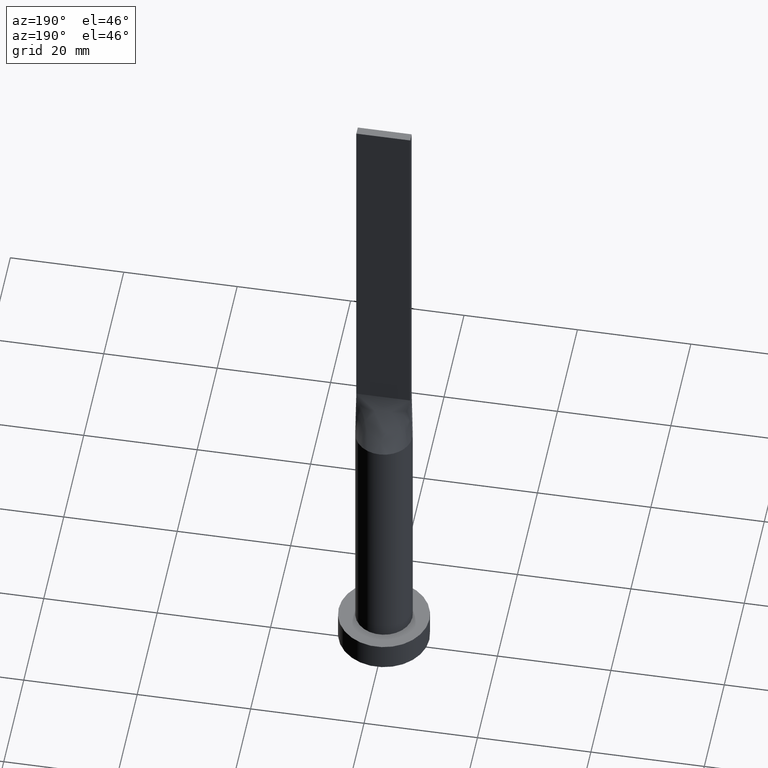
[diagram: clean part render]
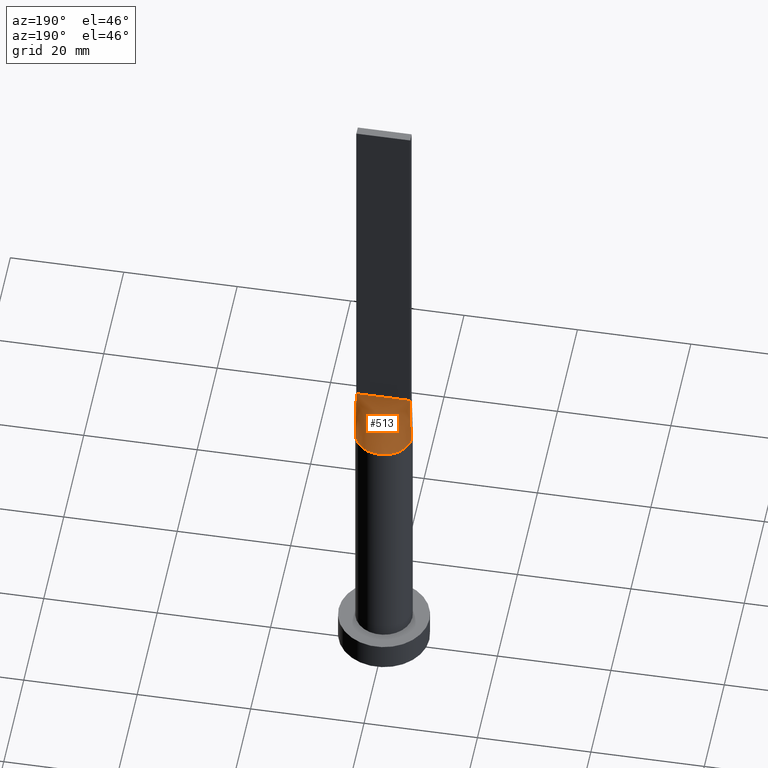
[diagram: same view with one face highlighted and labeled with its STEP entity id]
A machine part, auxiliary view. The second image highlights one B-rep face of the part: STEP entity #513.
In plain terms, the highlighted face is a freeform B-spline surface patch.
Its self-contained STEP definition (entity closure, byte-faithful):
#3 = CARTESIAN_POINT ( 'NONE',  ( 0.9895833333333176052, 0.7500000000000002220, 59.99999999999998579 ) ) ;
#8 = CARTESIAN_POINT ( 'NONE',  ( -2.353781608410062010, 4.424438117685770777, 49.99999999999998579 ) ) ;
#10 = CARTESIAN_POINT ( 'NONE',  ( -4.354166666666669627, 0.7500000000000002220, 60.00000000000000000 ) ) ;
#11 = CARTESIAN_POINT ( 'NONE',  ( -4.753727492665067444, 1.629988260829202007, 50.00000000000000711 ) ) ;
#14 = LINE ( 'NONE', #259, #219 ) ;
#17 = CARTESIAN_POINT ( 'NONE',  ( -0.7119876437238006339, 4.961551549233178982, 49.99999999999999289 ) ) ;
#24 = CARTESIAN_POINT ( 'NONE',  ( -4.332026455536841070, 2.547220758687717801, 49.99999999999999289 ) ) ;
#45 = B_SPLINE_CURVE_WITH_KNOTS ( 'NONE', 3,
 ( #293, #217, #206, #218, #307, #65, #261, #482, #158, #524, #233, #409, #319, #447, #17, #403, #322, #594, #275, #270, #597, #547, #24, #168, #538, #362 ),
 .UNSPECIFIED., .F., .F.,
 ( 4, 2, 2, 2, 2, 2, 2, 2, 2, 2, 2, 2, 4 ),
 ( 0.000000000000000000, 0.1250000000000001388, 0.2500000000000002220, 0.3125000000000002776, 0.3750000000000002776, 0.4375000000000002776, 0.5000000000000002220, 0.5625000000000002220, 0.6250000000000001110, 0.6875000000000001110, 0.7500000000000001110, 0.8750000000000001110, 1.000000000000000000 ),
 .UNSPECIFIED. ) ;
#54 = CARTESIAN_POINT ( 'NONE',  ( 0.3958333333333181603, 0.7500000000000002220, 59.99999999999998579 ) ) ;
#57 = CARTESIAN_POINT ( 'NONE',  ( 2.643217737595826566, 4.256483892511437439, 49.99999999999999289 ) ) ;
#60 = CARTESIAN_POINT ( 'NONE',  ( -4.874625637456156291, 1.186344398896586716, 49.99999999999998579 ) ) ;
#61 = VERTEX_POINT ( 'NONE', #184 ) ;
#65 = CARTESIAN_POINT ( 'NONE',  ( 3.404830936252119411, 3.673931880027066388, 50.00000000000000000 ) ) ;
#90 = VERTEX_POINT ( 'NONE', #338 ) ;
#101 = CARTESIAN_POINT ( 'NONE',  ( -1.400150253878312823, 4.812847332616943419, 49.99999999999999289 ) ) ;
#106 = CARTESIAN_POINT ( 'NONE',  ( -2.770833333333342807, 0.7500000000000002220, 60.00000000000000000 ) ) ;
#109 = CARTESIAN_POINT ( 'NONE',  ( 0.7916666666666508645, 0.7500000000000002220, 59.99999999999998579 ) ) ;
#121 = ORIENTED_EDGE ( 'NONE', *, *, #137, .F. ) ;
#122 = CARTESIAN_POINT ( 'NONE',  ( 4.750000000000000000, 0.7500000000000002220, 60.00000000000000000 ) ) ;
#137 = EDGE_CURVE ( 'NONE', #325, #90, #309, .T. ) ;
#144 = CARTESIAN_POINT ( 'NONE',  ( 3.166666666666658081, 0.7500000000000002220, 60.00000000000000000 ) ) ;
#149 = FACE_OUTER_BOUND ( 'NONE', #498, .T. ) ;
#158 = CARTESIAN_POINT ( 'NONE',  ( 2.353781608410062454, 4.424438117685770777, 49.99999999999999289 ) ) ;
#160 = DIRECTION ( 'NONE',  ( 0.01887803397728732291, -0.002980742206940072483, 0.9998173508241633423 ) ) ;
#165 = CARTESIAN_POINT ( 'NONE',  ( 0.7119876437238013001, 4.961551549233180758, 49.99999999999999289 ) ) ;
#168 = CARTESIAN_POINT ( 'NONE',  ( -4.753727492665067444, 1.629988260829202007, 50.00000000000000711 ) ) ;
#184 = CARTESIAN_POINT ( 'NONE',  ( -4.938831943662458812, 0.7798155886440080176, 49.99999999999999289 ) ) ;
#185 = VERTEX_POINT ( 'NONE', #467 ) ;
#188 = ORIENTED_EDGE ( 'NONE', *, *, #553, .T. ) ;
#194 = CARTESIAN_POINT ( 'NONE',  ( 3.958333333333328596, 0.7500000000000002220, 60.00000000000000000 ) ) ;
#198 = CARTESIAN_POINT ( 'NONE',  ( 2.177083333333320159, 0.7500000000000002220, 59.99999999999998579 ) ) ;
#206 = CARTESIAN_POINT ( 'NONE',  ( 4.753727492665065668, 1.629988260829201563, 49.99999999999998579 ) ) ;
#209 = CARTESIAN_POINT ( 'NONE',  ( -0.9895833333333476922, 0.7500000000000002220, 60.00000000000000000 ) ) ;
#211 = CARTESIAN_POINT ( 'NONE',  ( -4.750000000000000000, 0.7500000000000002220, 60.00000000000000000 ) ) ;
#217 = CARTESIAN_POINT ( 'NONE',  ( 4.874625637456157179, 1.186344398896585606, 49.99999999999999289 ) ) ;
#218 = CARTESIAN_POINT ( 'NONE',  ( 4.332026455536839293, 2.547220758687718689, 49.99999999999998579 ) ) ;
#219 = VECTOR ( 'NONE', #160, 1000.000000000000114 ) ;
#233 = CARTESIAN_POINT ( 'NONE',  ( 1.400150253878312823, 4.812847332616943419, 49.99999999999999289 ) ) ;
#247 = CARTESIAN_POINT ( 'NONE',  ( 4.354166666666664298, 0.7500000000000002220, 60.00000000000000000 ) ) ;
#251 = CARTESIAN_POINT ( 'NONE',  ( -1.385416666666680285, 0.7500000000000002220, 60.00000000000000000 ) ) ;
#254 = CARTESIAN_POINT ( 'NONE',  ( 1.583333333333318604, 0.7500000000000002220, 59.99999999999998579 ) ) ;
#255 = VECTOR ( 'NONE', #333, 1000.000000000000114 ) ;
#257 = CARTESIAN_POINT ( 'NONE',  ( -3.166666666666675400, 0.7500000000000002220, 60.00000000000000000 ) ) ;
#259 = CARTESIAN_POINT ( 'NONE',  ( -4.844407413322673328, 0.7649064336825274202, 54.99999999999999289 ) ) ;
#260 = VECTOR ( 'NONE', #411, 1000.000000000000000 ) ;
#261 = CARTESIAN_POINT ( 'NONE',  ( 3.168723755431093192, 3.881165404529570040, 49.99999999999999289 ) ) ;
#267 = B_SPLINE_SURFACE_WITH_KNOTS ( 'NONE', 3, 1, ( 
 ( #424, #287 ),
 ( #430, #247 ),
 ( #616, #194 ),
 ( #385, #144 ),
 ( #337, #426 ),
 ( #618, #198 ),
 ( #386, #571 ),
 ( #57, #254 ),
 ( #297, #399 ),
 ( #483, #3 ),
 ( #582, #109 ),
 ( #165, #54 ),
 ( #395, #304 ),
 ( #345, #393 ),
 ( #591, #528 ),
 ( #101, #348 ),
 ( #436, #209 ),
 ( #8, #251 ),
 ( #301, #578 ),
 ( #439, #486 ),
 ( #440, #492 ),
 ( #585, #106 ),
 ( #358, #257 ),
 ( #11, #355 ),
 ( #60, #10 ),
 ( #533, #211 ) ),
 .UNSPECIFIED., .F., .F., .F.,
 ( 4, 2, 2, 2, 2, 2, 2, 2, 2, 2, 2, 2, 4 ),
 ( 2, 2 ),
 ( 0.000000000000000000, 0.1250000000000001388, 0.2500000000000002220, 0.3125000000000002776, 0.3750000000000002776, 0.4375000000000002776, 0.5000000000000002220, 0.5625000000000002220, 0.6250000000000001110, 0.6875000000000001110, 0.7500000000000001110, 0.8750000000000001110, 1.000000000000000000 ),
 ( 0.000000000000000000, 1.000000000000000000 ),
 .UNSPECIFIED. ) ;
#270 = CARTESIAN_POINT ( 'NONE',  ( -3.168723755431092748, 3.881165404529570484, 49.99999999999997868 ) ) ;
#275 = CARTESIAN_POINT ( 'NONE',  ( -2.643217737595827455, 4.256483892511438327, 49.99999999999998579 ) ) ;
#287 = CARTESIAN_POINT ( 'NONE',  ( 4.750000000000000000, 0.7500000000000002220, 60.00000000000000000 ) ) ;
#291 = CARTESIAN_POINT ( 'NONE',  ( 4.844407413322673328, 0.7649064336825270871, 54.99999999999999289 ) ) ;
#293 = CARTESIAN_POINT ( 'NONE',  ( 4.938814826645345768, 0.7798128673650538412, 49.99999999999999289 ) ) ;
#297 = CARTESIAN_POINT ( 'NONE',  ( 2.353781608410062454, 4.424438117685770777, 49.99999999999999289 ) ) ;
#301 = CARTESIAN_POINT ( 'NONE',  ( -2.643217737595827455, 4.256483892511438327, 49.99999999999998579 ) ) ;
#304 = CARTESIAN_POINT ( 'NONE',  ( 0.1979166666666522800, 0.7500000000000001110, 59.99999999999997868 ) ) ;
#307 = CARTESIAN_POINT ( 'NONE',  ( 4.029217956433126524, 3.021257902548482477, 50.00000000000000000 ) ) ;
#309 = LINE ( 'NONE', #310, #260 ) ;
#310 = CARTESIAN_POINT ( 'NONE',  ( -4.750000000000000000, 0.7500000000000002220, 60.00000000000000000 ) ) ;
#319 = CARTESIAN_POINT ( 'NONE',  ( 0.3560391241594590972, 5.000000000000001776, 50.00000000000000000 ) ) ;
#322 = CARTESIAN_POINT ( 'NONE',  ( -1.732223102076449806, 4.702695359254402518, 49.99999999999998579 ) ) ;
#325 = VERTEX_POINT ( 'NONE', #122 ) ;
#333 = DIRECTION ( 'NONE',  ( -0.01887803397728732291, -0.002980742206940007865, 0.9998173508241633423 ) ) ;
#334 = ORIENTED_EDGE ( 'NONE', *, *, #452, .F. ) ;
#337 = CARTESIAN_POINT ( 'NONE',  ( 4.029217956433126524, 3.021257902548482477, 50.00000000000000000 ) ) ;
#338 = CARTESIAN_POINT ( 'NONE',  ( -4.750000000000000000, 0.7500000000000002220, 60.00000000000000000 ) ) ;
#340 = ORIENTED_EDGE ( 'NONE', *, *, #577, .T. ) ;
#345 = CARTESIAN_POINT ( 'NONE',  ( -0.3560391241594593192, 5.000000000000000000, 50.00000000000000711 ) ) ;
#348 = CARTESIAN_POINT ( 'NONE',  ( -0.7916666666666816177, 0.7500000000000002220, 59.99999999999999289 ) ) ;
#355 = CARTESIAN_POINT ( 'NONE',  ( -3.958333333333337922, 0.7500000000000002220, 60.00000000000000000 ) ) ;
#358 = CARTESIAN_POINT ( 'NONE',  ( -4.332026455536841070, 2.547220758687717801, 49.99999999999999289 ) ) ;
#362 = CARTESIAN_POINT ( 'NONE',  ( -4.938831943662458812, 0.7798155886440080176, 49.99999999999999289 ) ) ;
#385 = CARTESIAN_POINT ( 'NONE',  ( 4.332026455536839293, 2.547220758687718689, 49.99999999999998579 ) ) ;
#386 = CARTESIAN_POINT ( 'NONE',  ( 3.168723755431093192, 3.881165404529570040, 49.99999999999999289 ) ) ;
#393 = CARTESIAN_POINT ( 'NONE',  ( -0.1979166666666808405, 0.7500000000000002220, 59.99999999999997868 ) ) ;
#395 = CARTESIAN_POINT ( 'NONE',  ( 0.3560391241594590972, 5.000000000000001776, 50.00000000000000000 ) ) ;
#399 = CARTESIAN_POINT ( 'NONE',  ( 1.385416666666651642, 0.7500000000000002220, 59.99999999999998579 ) ) ;
#403 = CARTESIAN_POINT ( 'NONE',  ( -1.400150253878312823, 4.812847332616943419, 49.99999999999999289 ) ) ;
#409 = CARTESIAN_POINT ( 'NONE',  ( 0.7119876437238013001, 4.961551549233180758, 49.99999999999999289 ) ) ;
#411 = DIRECTION ( 'NONE',  ( -1.000000000000000000, -0.000000000000000000, -0.000000000000000000 ) ) ;
#422 = LINE ( 'NONE', #291, #255 ) ;
#424 = CARTESIAN_POINT ( 'NONE',  ( 4.938814826645345768, 0.7798128673650542853, 49.99999999999999289 ) ) ;
#426 = CARTESIAN_POINT ( 'NONE',  ( 2.770833333333322823, 0.7500000000000002220, 59.99999999999998579 ) ) ;
#430 = CARTESIAN_POINT ( 'NONE',  ( 4.874625637456157179, 1.186344398896585606, 49.99999999999999289 ) ) ;
#436 = CARTESIAN_POINT ( 'NONE',  ( -1.732223102076449806, 4.702695359254402518, 49.99999999999998579 ) ) ;
#439 = CARTESIAN_POINT ( 'NONE',  ( -3.168723755431092748, 3.881165404529570484, 49.99999999999997868 ) ) ;
#440 = CARTESIAN_POINT ( 'NONE',  ( -3.404830936252120299, 3.673931880027067720, 50.00000000000000000 ) ) ;
#447 = CARTESIAN_POINT ( 'NONE',  ( -0.3560391241594593192, 5.000000000000000000, 50.00000000000000711 ) ) ;
#452 = EDGE_CURVE ( 'NONE', #185, #325, #422, .T. ) ;
#467 = CARTESIAN_POINT ( 'NONE',  ( 4.938814826645345768, 0.7798128673650538412, 49.99999999999999289 ) ) ;
#482 = CARTESIAN_POINT ( 'NONE',  ( 2.643217737595826566, 4.256483892511437439, 49.99999999999999289 ) ) ;
#483 = CARTESIAN_POINT ( 'NONE',  ( 1.732223102076450250, 4.702695359254404295, 49.99999999999998579 ) ) ;
#486 = CARTESIAN_POINT ( 'NONE',  ( -1.979166666666678509, 0.7500000000000002220, 59.99999999999999289 ) ) ;
#492 = CARTESIAN_POINT ( 'NONE',  ( -2.177083333333344584, 0.7500000000000002220, 59.99999999999999289 ) ) ;
#498 = EDGE_LOOP ( 'NONE', ( #340, #188, #121, #334 ) ) ;
#513 = ADVANCED_FACE ( 'NONE', ( #149 ), #267, .T. ) ;
#524 = CARTESIAN_POINT ( 'NONE',  ( 1.732223102076450250, 4.702695359254404295, 49.99999999999998579 ) ) ;
#528 = CARTESIAN_POINT ( 'NONE',  ( -0.3958333333333481918, 0.7500000000000002220, 59.99999999999998579 ) ) ;
#533 = CARTESIAN_POINT ( 'NONE',  ( -4.938814826645345768, 0.7798128673650545073, 49.99999999999999289 ) ) ;
#538 = CARTESIAN_POINT ( 'NONE',  ( -4.874625637456156291, 1.186344398896586716, 49.99999999999998579 ) ) ;
#547 = CARTESIAN_POINT ( 'NONE',  ( -4.029217956433124748, 3.021257902548482033, 50.00000000000000711 ) ) ;
#553 = EDGE_CURVE ( 'NONE', #61, #90, #14, .T. ) ;
#571 = CARTESIAN_POINT ( 'NONE',  ( 1.979166666666652974, 0.7500000000000002220, 59.99999999999998579 ) ) ;
#577 = EDGE_CURVE ( 'NONE', #185, #61, #45, .T. ) ;
#578 = CARTESIAN_POINT ( 'NONE',  ( -1.583333333333346360, 0.7500000000000002220, 60.00000000000000000 ) ) ;
#582 = CARTESIAN_POINT ( 'NONE',  ( 1.400150253878312823, 4.812847332616943419, 49.99999999999999289 ) ) ;
#585 = CARTESIAN_POINT ( 'NONE',  ( -4.029217956433124748, 3.021257902548482033, 50.00000000000000711 ) ) ;
#591 = CARTESIAN_POINT ( 'NONE',  ( -0.7119876437238006339, 4.961551549233178982, 49.99999999999999289 ) ) ;
#594 = CARTESIAN_POINT ( 'NONE',  ( -2.353781608410062010, 4.424438117685770777, 49.99999999999998579 ) ) ;
#597 = CARTESIAN_POINT ( 'NONE',  ( -3.404830936252120299, 3.673931880027067720, 50.00000000000000000 ) ) ;
#616 = CARTESIAN_POINT ( 'NONE',  ( 4.753727492665065668, 1.629988260829201563, 49.99999999999998579 ) ) ;
#618 = CARTESIAN_POINT ( 'NONE',  ( 3.404830936252119411, 3.673931880027066388, 50.00000000000000000 ) ) ;